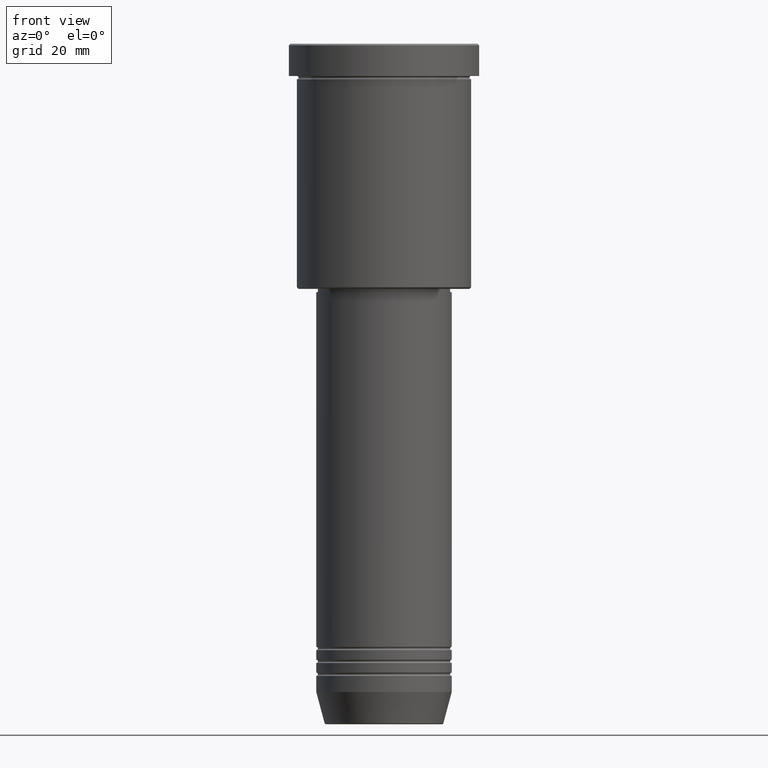
[diagram: clean part render]
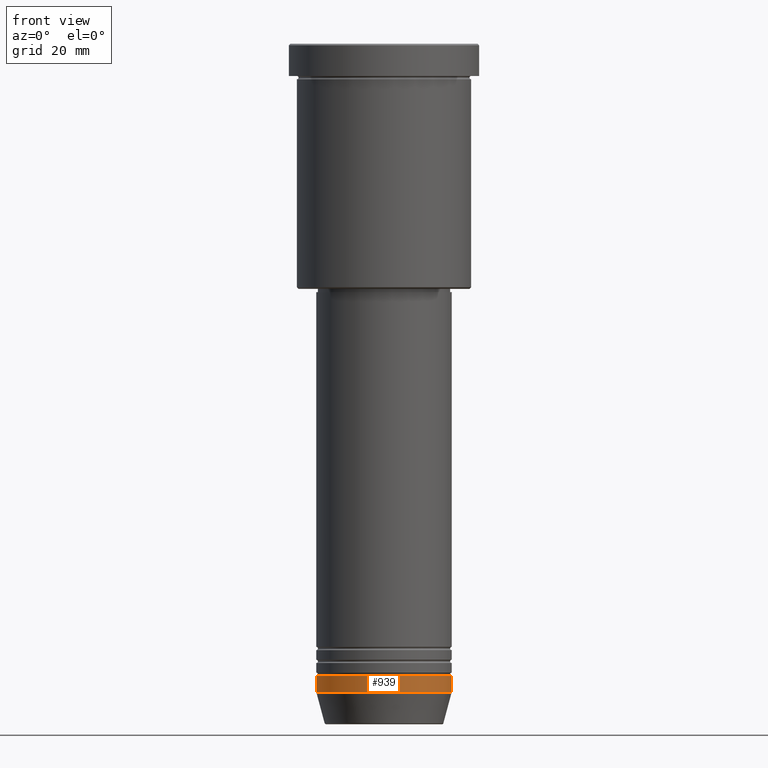
[diagram: same view with one face highlighted and labeled with its STEP entity id]
A machine part, front view. The second image highlights one B-rep face of the part: STEP entity #939.
In plain terms, the highlighted cylindrical surface (partial cylindrical patch) has radius 21 mm, axis along (-0, -0, 1).
Its self-contained STEP definition (entity closure, byte-faithful):
#4 = AXIS2_PLACEMENT_3D ( 'NONE', #519, #878, #429 ) ;
#37 = LINE ( 'NONE', #922, #731 ) ;
#53 = CARTESIAN_POINT ( 'NONE',  ( -21.00000000000000000, 2.571758278209441661E-15, 0.000000000000000000 ) ) ;
#111 = CARTESIAN_POINT ( 'NONE',  ( 21.00000000000000000, 0.000000000000000000, -196.0000000000000284 ) ) ;
#152 = ORIENTED_EDGE ( 'NONE', *, *, #372, .F. ) ;
#183 = CARTESIAN_POINT ( 'NONE',  ( 21.00000000000000000, 0.000000000000000000, -201.0000000000000000 ) ) ;
#227 = EDGE_CURVE ( 'NONE', #504, #553, #37, .T. ) ;
#229 = DIRECTION ( 'NONE',  ( -0.000000000000000000, -0.000000000000000000, 1.000000000000000000 ) ) ;
#238 = DIRECTION ( 'NONE',  ( -0.000000000000000000, -0.000000000000000000, 1.000000000000000000 ) ) ;
#304 = ORIENTED_EDGE ( 'NONE', *, *, #227, .T. ) ;
#317 = AXIS2_PLACEMENT_3D ( 'NONE', #568, #931, #486 ) ;
#337 = EDGE_CURVE ( 'NONE', #1053, #1096, #953, .T. ) ;
#352 = CARTESIAN_POINT ( 'NONE',  ( -21.00000000000000000, 2.571758278209441661E-15, -201.0000000000000000 ) ) ;
#372 = EDGE_CURVE ( 'NONE', #1096, #553, #935, .T. ) ;
#414 = VECTOR ( 'NONE', #238, 1000.000000000000000 ) ;
#429 = DIRECTION ( 'NONE',  ( 1.000000000000000000, 0.000000000000000000, 0.000000000000000000 ) ) ;
#486 = DIRECTION ( 'NONE',  ( 1.000000000000000000, 0.000000000000000000, 0.000000000000000000 ) ) ;
#503 = CARTESIAN_POINT ( 'NONE',  ( 0.000000000000000000, 0.000000000000000000, 0.000000000000000000 ) ) ;
#504 = VERTEX_POINT ( 'NONE', #183 ) ;
#519 = CARTESIAN_POINT ( 'NONE',  ( 0.000000000000000000, 0.000000000000000000, -196.0000000000000284 ) ) ;
#543 = ORIENTED_EDGE ( 'NONE', *, *, #337, .F. ) ;
#544 = AXIS2_PLACEMENT_3D ( 'NONE', #503, #229, #651 ) ;
#553 = VERTEX_POINT ( 'NONE', #111 ) ;
#568 = CARTESIAN_POINT ( 'NONE',  ( 0.000000000000000000, 0.000000000000000000, -201.0000000000000000 ) ) ;
#628 = EDGE_LOOP ( 'NONE', ( #543, #844, #304, #152 ) ) ;
#651 = DIRECTION ( 'NONE',  ( 1.000000000000000000, 0.000000000000000000, 0.000000000000000000 ) ) ;
#731 = VECTOR ( 'NONE', #948, 1000.000000000000000 ) ;
#770 = FACE_OUTER_BOUND ( 'NONE', #628, .T. ) ;
#844 = ORIENTED_EDGE ( 'NONE', *, *, #929, .T. ) ;
#878 = DIRECTION ( 'NONE',  ( -0.000000000000000000, -0.000000000000000000, 1.000000000000000000 ) ) ;
#922 = CARTESIAN_POINT ( 'NONE',  ( 21.00000000000000000, 0.000000000000000000, 0.000000000000000000 ) ) ;
#929 = EDGE_CURVE ( 'NONE', #1053, #504, #1154, .T. ) ;
#931 = DIRECTION ( 'NONE',  ( -0.000000000000000000, -0.000000000000000000, 1.000000000000000000 ) ) ;
#935 = CIRCLE ( 'NONE', #4, 21.00000000000000000 ) ;
#939 = ADVANCED_FACE ( 'NONE', ( #770 ), #1129, .T. ) ;
#948 = DIRECTION ( 'NONE',  ( -0.000000000000000000, -0.000000000000000000, 1.000000000000000000 ) ) ;
#953 = LINE ( 'NONE', #53, #414 ) ;
#1053 = VERTEX_POINT ( 'NONE', #352 ) ;
#1078 = CARTESIAN_POINT ( 'NONE',  ( -21.00000000000000000, 2.571758278209441661E-15, -196.0000000000000284 ) ) ;
#1096 = VERTEX_POINT ( 'NONE', #1078 ) ;
#1129 = CYLINDRICAL_SURFACE ( 'NONE', #544, 21.00000000000000000 ) ;
#1154 = CIRCLE ( 'NONE', #317, 21.00000000000000000 ) ;